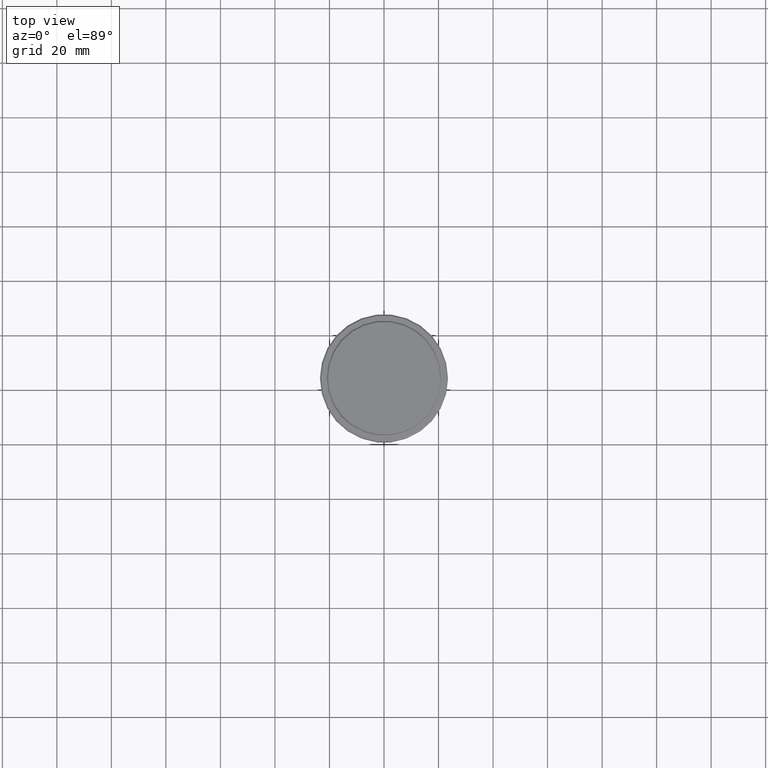
[diagram: clean part render]
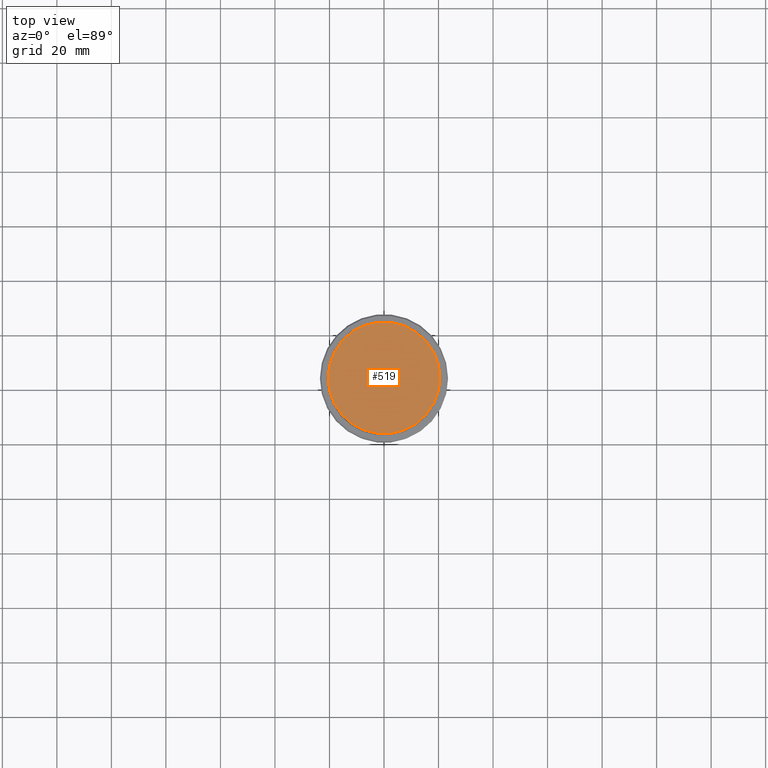
[diagram: same view with one face highlighted and labeled with its STEP entity id]
A machine part, top view. The second image highlights one B-rep face of the part: STEP entity #519.
In plain terms, the highlighted planar face has unit normal (0, -0, 1).
Its self-contained STEP definition (entity closure, byte-faithful):
#192 = CARTESIAN_POINT ( 'NONE',  ( 20.50000000000007461, 2.541142108230762213E-15, 0.000000000000000000 ) ) ;
#240 = FACE_OUTER_BOUND ( 'NONE', #1025, .T. ) ;
#435 = AXIS2_PLACEMENT_3D ( 'NONE', #1273, #1095, #903 ) ;
#460 = DIRECTION ( 'NONE',  ( 1.000000000000000000, 0.000000000000000000, 0.000000000000000000 ) ) ;
#461 = CIRCLE ( 'NONE', #435, 20.50000000000007461 ) ;
#486 = AXIS2_PLACEMENT_3D ( 'NONE', #1245, #1343, #1017 ) ;
#519 = ADVANCED_FACE ( 'NONE', ( #240 ), #1406, .T. ) ;
#562 = ORIENTED_EDGE ( 'NONE', *, *, #1092, .T. ) ;
#618 = AXIS2_PLACEMENT_3D ( 'NONE', #673, #786, #460 ) ;
#622 = CIRCLE ( 'NONE', #486, 20.50000000000007461 ) ;
#673 = CARTESIAN_POINT ( 'NONE',  ( 0.000000000000000000, 0.000000000000000000, 0.000000000000000000 ) ) ;
#786 = DIRECTION ( 'NONE',  ( 0.000000000000000000, -0.000000000000000000, 1.000000000000000000 ) ) ;
#877 = ORIENTED_EDGE ( 'NONE', *, *, #1178, .T. ) ;
#903 = DIRECTION ( 'NONE',  ( 1.000000000000000000, 0.000000000000000000, 0.000000000000000000 ) ) ;
#916 = VERTEX_POINT ( 'NONE', #192 ) ;
#978 = CARTESIAN_POINT ( 'NONE',  ( -20.50000000000007461, 0.000000000000000000, 0.000000000000000000 ) ) ;
#1017 = DIRECTION ( 'NONE',  ( 1.000000000000000000, 0.000000000000000000, 0.000000000000000000 ) ) ;
#1025 = EDGE_LOOP ( 'NONE', ( #562, #877 ) ) ;
#1092 = EDGE_CURVE ( 'NONE', #1328, #916, #622, .T. ) ;
#1095 = DIRECTION ( 'NONE',  ( -0.000000000000000000, -0.000000000000000000, 1.000000000000000000 ) ) ;
#1178 = EDGE_CURVE ( 'NONE', #916, #1328, #461, .T. ) ;
#1245 = CARTESIAN_POINT ( 'NONE',  ( 0.000000000000000000, 0.000000000000000000, 0.000000000000000000 ) ) ;
#1273 = CARTESIAN_POINT ( 'NONE',  ( 0.000000000000000000, 0.000000000000000000, 0.000000000000000000 ) ) ;
#1328 = VERTEX_POINT ( 'NONE', #978 ) ;
#1343 = DIRECTION ( 'NONE',  ( -0.000000000000000000, -0.000000000000000000, 1.000000000000000000 ) ) ;
#1406 = PLANE ( 'NONE',  #618 ) ;